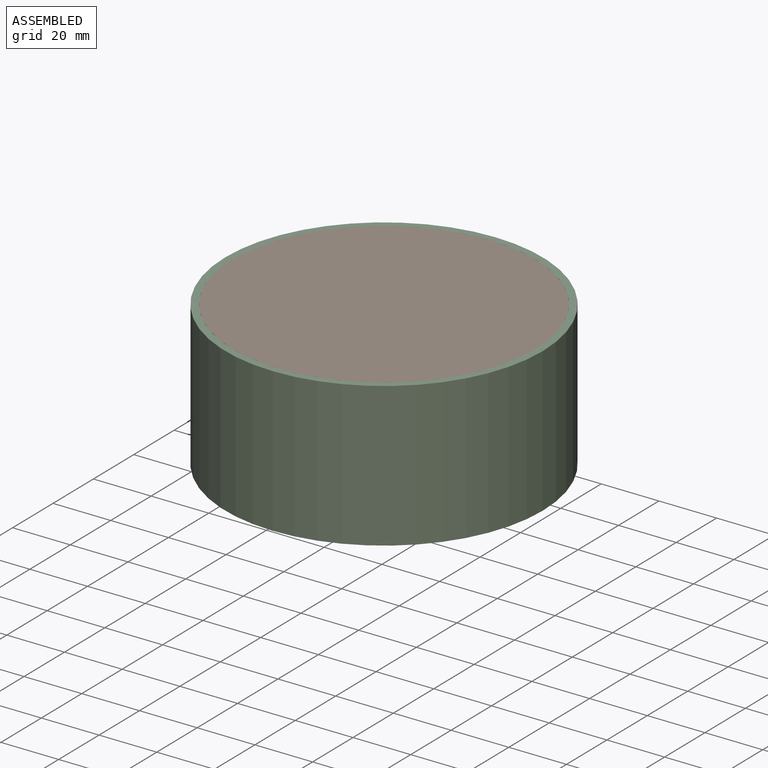
[diagram: assembled view]
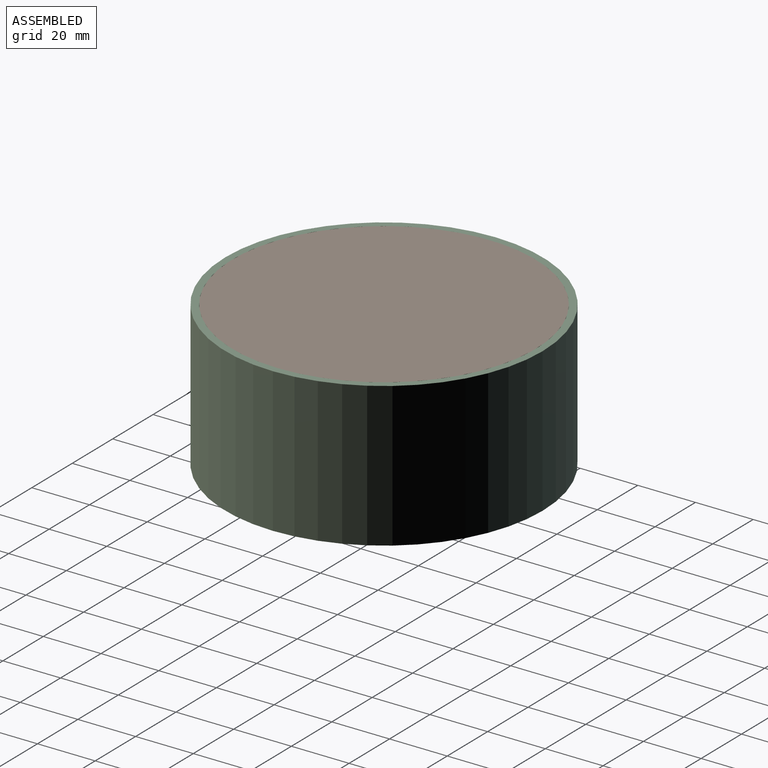
[diagram: assembled view, second angle]
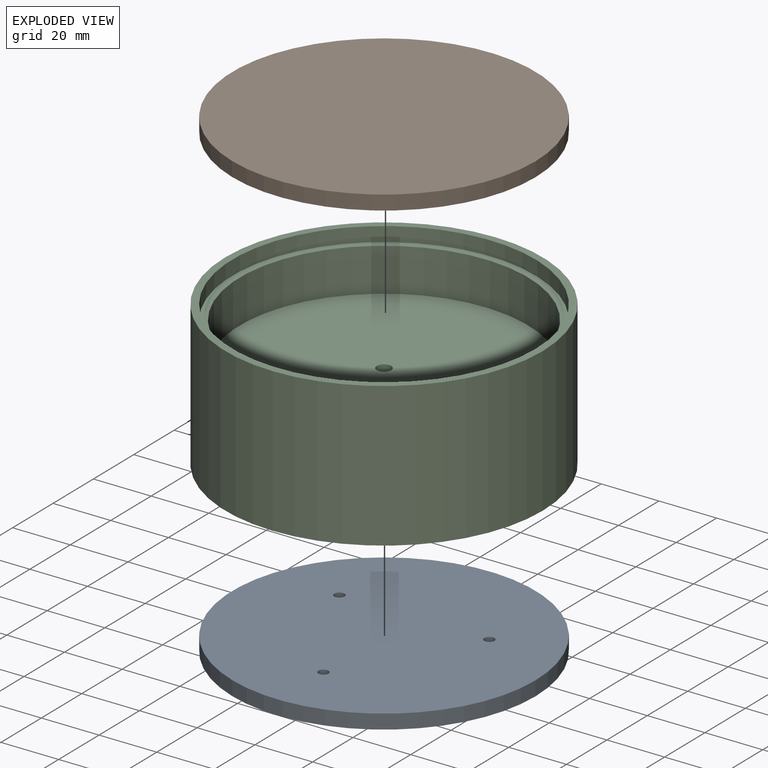
[diagram: exploded view]
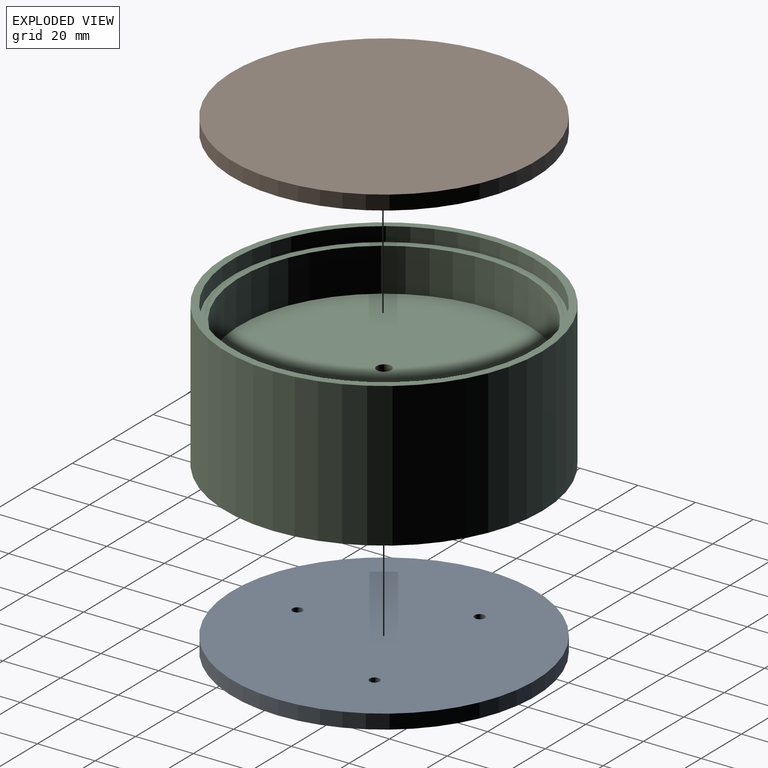
[diagram: exploded view, second angle]
ASSEMBLY  parts=3 mates=2
PART A: 6 faces, bbox 105x105x5 mm
  f0: cylinder r=52.5mm len=105mm, axis (0,0,1), area 1649.3mm2, adj f1,f2
  f1: plane 105x105mm, normal (0,0,1), area 8630.2mm2, adj f0,f3,f4,f5
  f2: plane 105x105mm, normal (0,0,-1), area 8630.2mm2, adj f0,f3,f4,f5
  f3: cylinder r=1.75mm len=5mm, axis (0,0,1), area 55mm2, adj f1,f2
  f4: cylinder r=1.75mm len=5mm, axis (0,0,1), area 55mm2, adj f1,f2
  f5: cylinder r=1.75mm len=5mm, axis (0,0,1), area 55mm2, adj f1,f2
PART B: 3 faces, bbox 105x105x5 mm
  f0: cylinder r=52.5mm len=105mm, axis (0,0,1), area 1649.3mm2, adj f1,f2
  f1: plane 105x105mm, normal (0,0,1), area 8659mm2, adj f0
  f2: plane 105x105mm, normal (0,0,-1), area 8659mm2, adj f0
PART C: 12 faces, bbox 110x110x50 mm
  f0: cylinder r=55mm len=110mm, axis (0,0,1), area 17278.8mm2, adj f1,f2
  f1: plane 110x110mm, normal (0,0,1), area 844.3mm2, adj f0,f3
  f2: plane 110x110mm, normal (0,0,-1), area 844.3mm2, adj f0,f7
  f3: cylinder r=52.5mm len=105mm, axis (0,0,1), area 1649.3mm2, adj f1,f4
  f4: plane 105x105mm, normal (0,0,1), area 805mm2, adj f3,f6
  f5: plane 100x100mm, normal (0,0,1), area 7834.3mm2, adj f6,f11
  f6: cylinder r=50mm len=100mm, axis (0,0,1), area 4712.4mm2, adj f4,f5
  f7: cylinder r=52.5mm len=105mm, axis (0,0,-1), area 1649.3mm2, adj f2,f8
  f8: plane 105x105mm, normal (0,0,-1), area 805mm2, adj f7,f10
  f9: plane 100x100mm, normal (0,0,-1), area 7834.3mm2, adj f10,f11
  f10: cylinder r=50mm len=100mm, axis (0,0,-1), area 6283.2mm2, adj f8,f9
  f11: cylinder r=2.5mm len=5mm, axis (0,0,-1), area 78.5mm2, adj f5,f9
PLACE A rot(axis=(-1,0,0),180deg) t=(-22.9,-11.93,-18.07)mm
PLACE B rot(axis=(-1,0,0),180deg) t=(-22.9,-11.93,26.93)mm
PLACE C t=(-22.9,-11.93,1.93)mm
MATE fastened B.f0 <-> C.f6  axis (0,0,-1) through (-22.9,-11.93,21.93)mm
MATE fastened A.f0 <-> C.f7  axis (0,0,1) through (-22.9,-11.93,-18.07)mm
